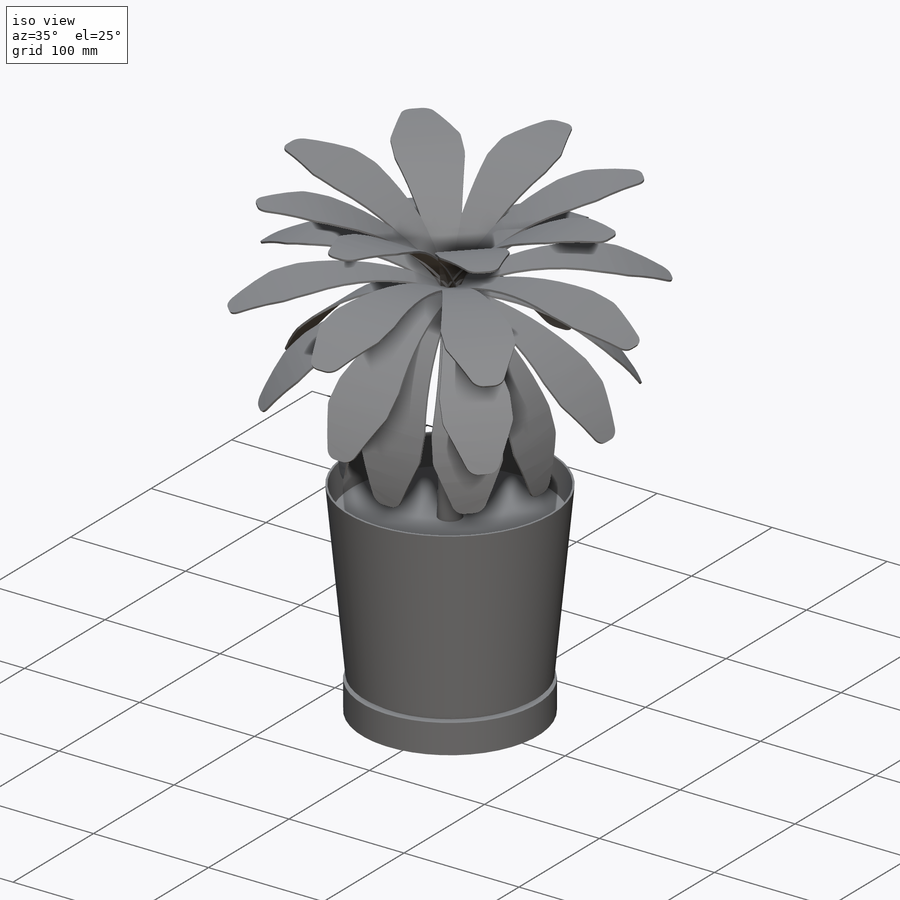
[diagram: iso view]
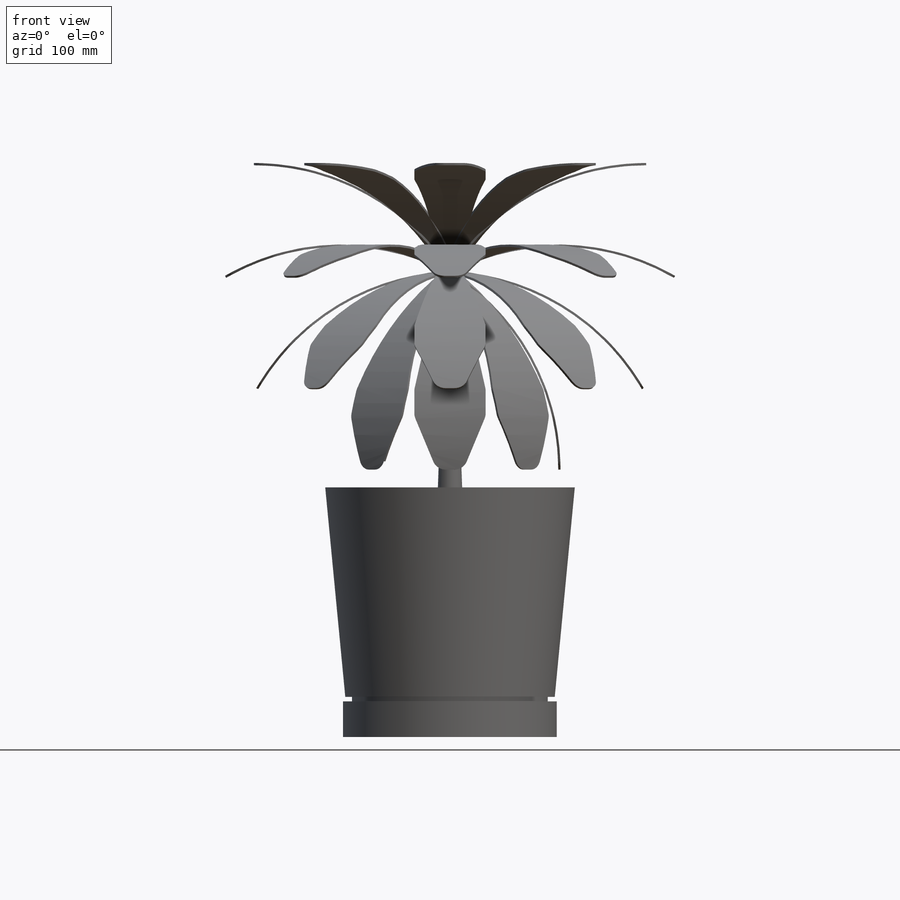
[diagram: front view]
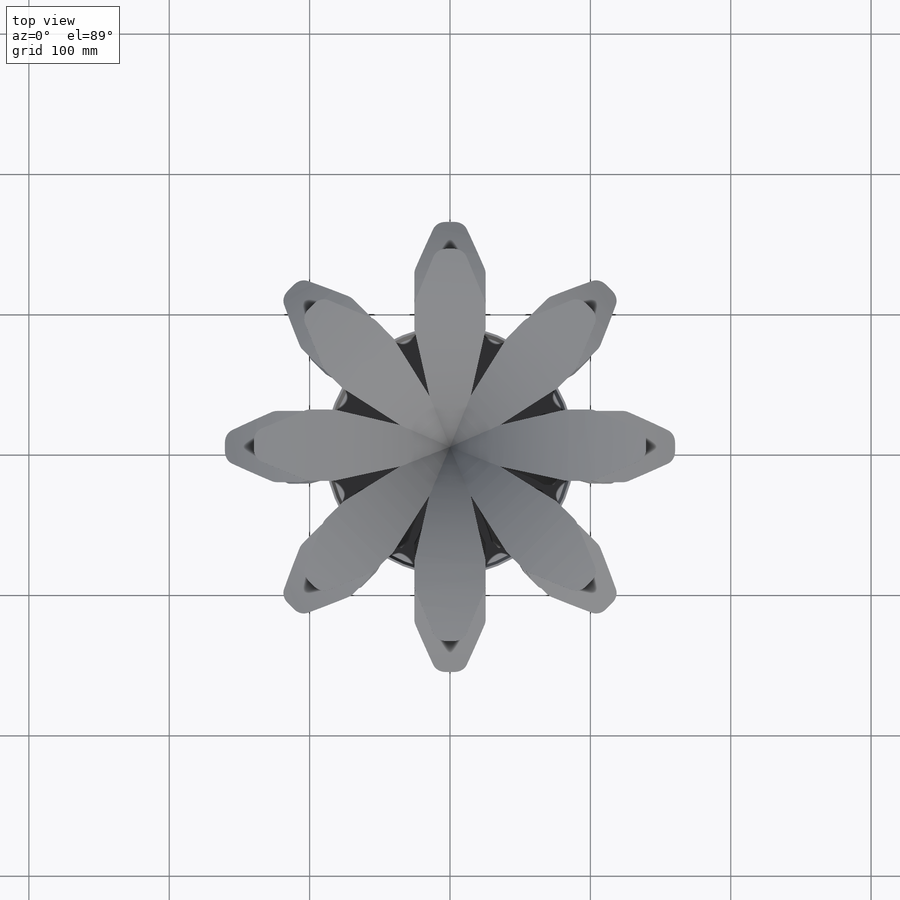
[diagram: top view]
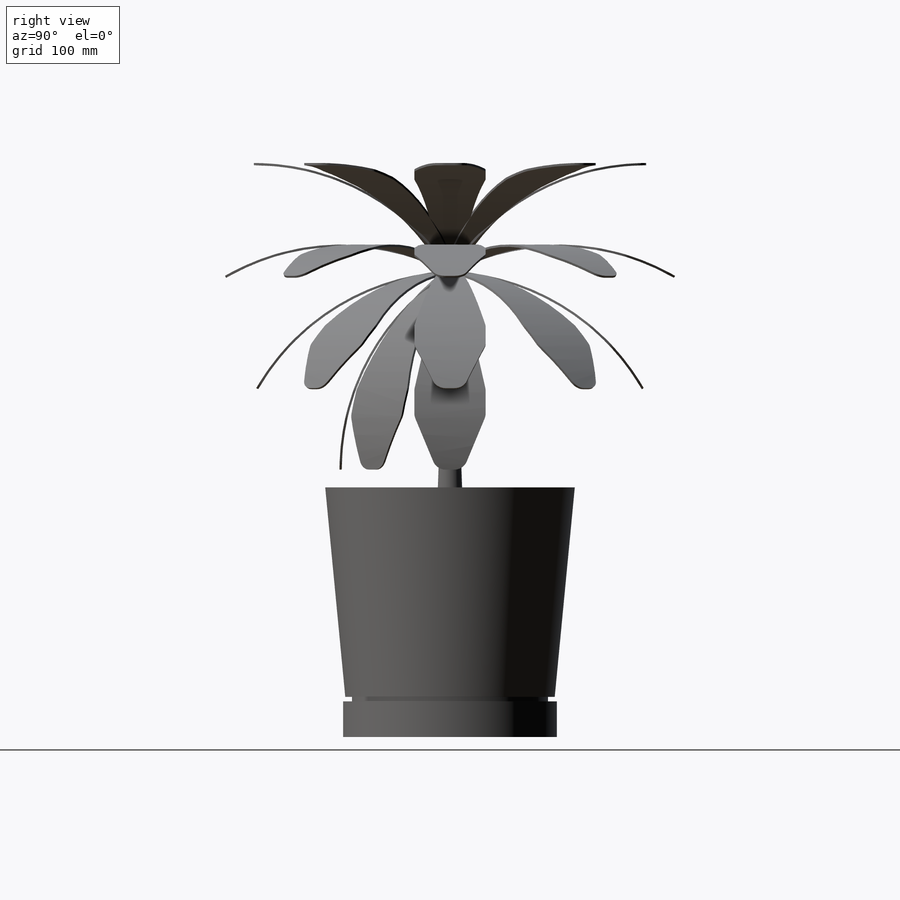
[diagram: right view]
SOLIDWORKS PART (.sldprt)
format: sldprt  version: not decoded by parser v0  size: 1,918,976 bytes
history: native  units: mm
features: sketch x4, extrude x2, pattern_circular x2, material x1, revolve x1, cut_extrude x1, fillet x1 + 2 further entries (+16 scaffold rows collapsed)
feature tree (30):
  scaffold x16  (default folders/planes/origin — collapsed)
  material  "Beech"
  "Y-Axis"
  "Z-Axis"
  sketch  "Sketch1"  dims[D1=25.4mm D2=177.8mm D3=152.4mm D4=6.35mm D5=3.175mm D6=1.5875mm D7=177.8mm D8=25.4mm D9=1.5875mm]
  revolve  "Revolve1"  Angle=360deg
  sketch  "Sketch3"  dims[D1=19.05mm]
  extrude  "Boss-Extrude1"  Depth=177.8mm
  sketch  "Sketch4"  dims[D2=165.1mm D1=1.5875mm D3=12.7mm]
  extrude  "Boss-Extrude2"  Depth=50.8mm
  sketch  "Sketch5"  dims[D1=19.05mm D2=19.05mm D3=38.1mm D4=12.7mm]
  cut_extrude  "Cut-Extrude1"  [1 undecoded]
  fillet  "Fillet6"  Radius=9.525mm
  pattern_circular  "CirPattern2"  Count=4 Angle=30deg
  pattern_circular  "CirPattern3"  Count=8 Angle=360deg
decode coverage: 10 of 11 modeling features carry decoded parameters; 2 rows unclassified (native names shown)
note: 1 parameter value undecoded
note: suppression state not decoded; provenance and decode notes live in map.json
